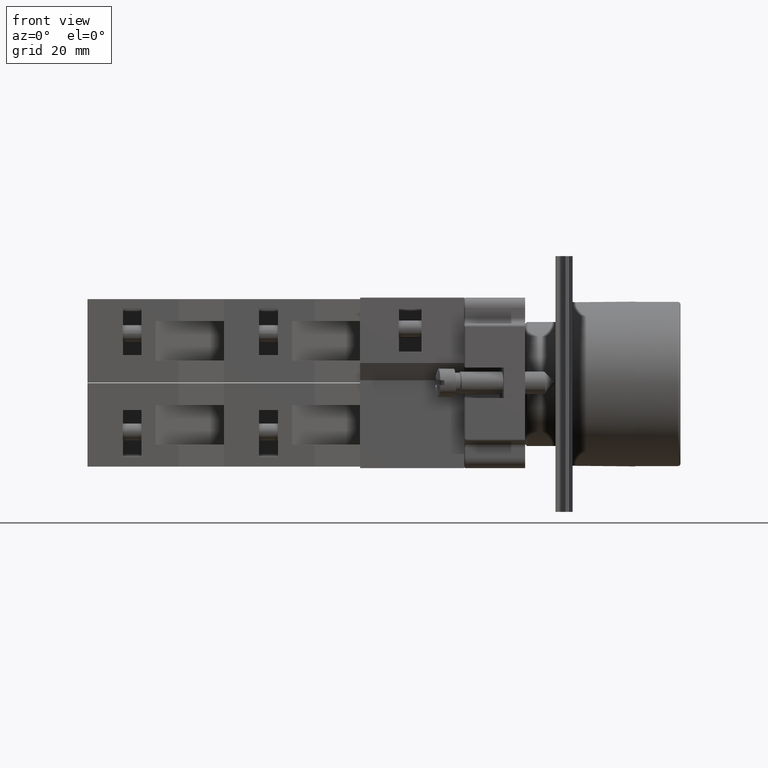
[diagram: clean part render]
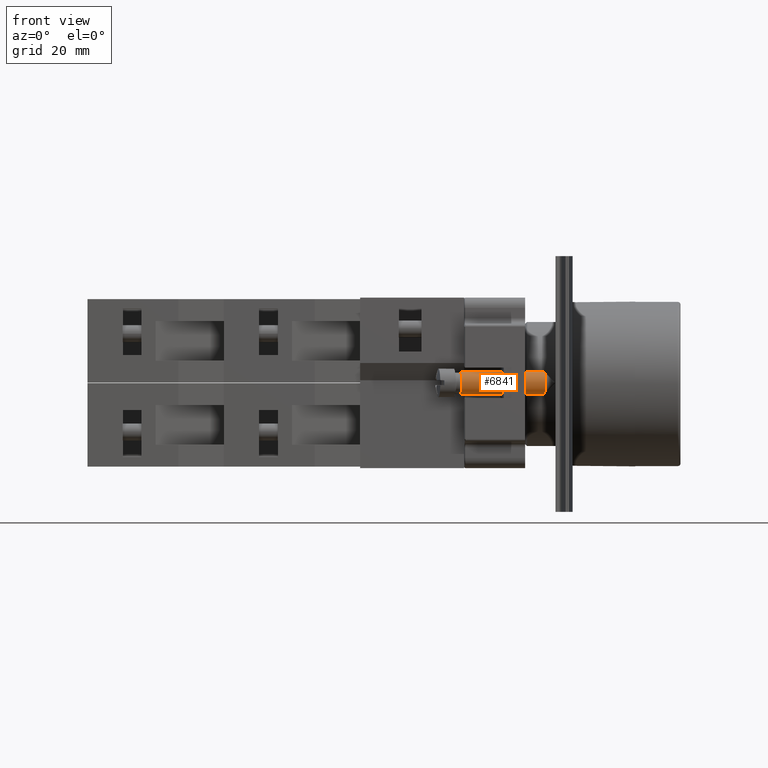
[diagram: same view with one face highlighted and labeled with its STEP entity id]
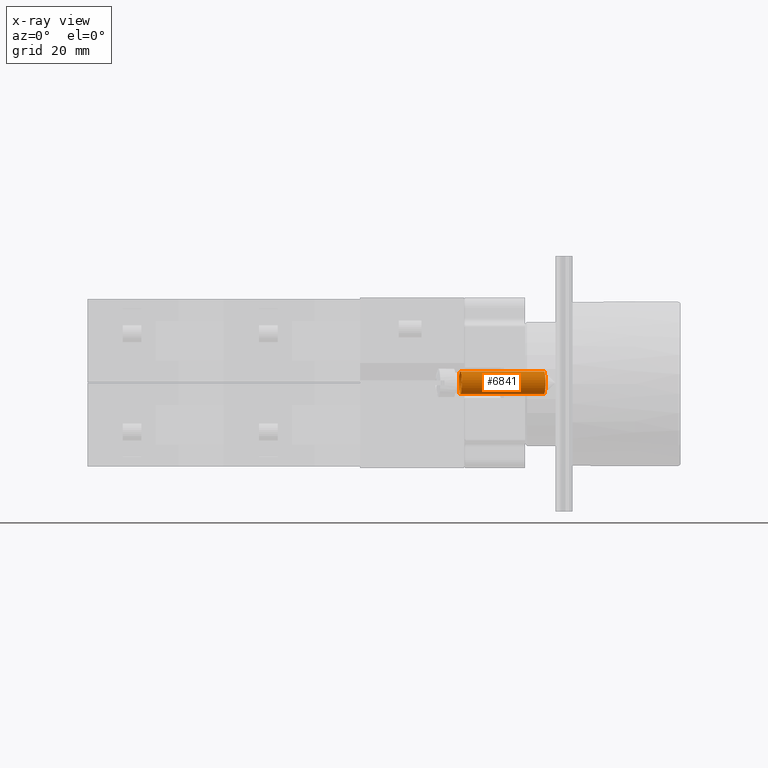
[diagram: x-ray of the same camera — body ghosted, the highlighted face saturated]
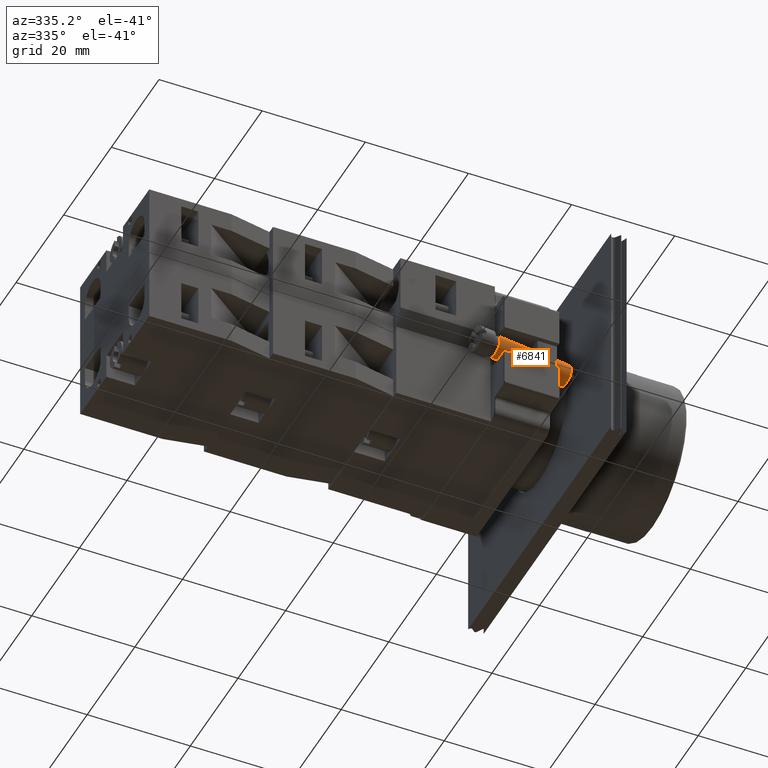
[diagram: same view with one face highlighted and labeled with its STEP entity id]
A machine part, front view. The second image highlights one B-rep face of the part: STEP entity #6841.
The next image is the same camera in x-ray: the body ghosted, the highlighted face saturated — about 0% of this face is hidden behind the body in this view.
A second angle (auxiliary view) of the same face is appended — the face is thin or edge-on in the first view.
In plain terms, the highlighted cylindrical surface (bore or boss wall) has radius 2 mm, axis along (0.9914, 0.1305, 0).
Its self-contained STEP definition (entity closure, byte-faithful):
#6810=CARTESIAN_POINT('',(-1.999999999999998,0.0,-1.119999999999999));
#6811=VERTEX_POINT('',#6810);
#6812=CARTESIAN_POINT('',(0.0,0.0,-1.119999999999999));
#6813=DIRECTION('',(0.0,0.0,-1.0));
#6814=DIRECTION('',(-1.0,0.0,0.0));
#6815=AXIS2_PLACEMENT_3D('',#6812,#6813,#6814);
#6816=CIRCLE('',#6815,1.999999999999998);
#6817=EDGE_CURVE('',#6811,#6811,#6816,.T.);
#6822=CARTESIAN_POINT('',(0.0,0.0,-8.559999999999999));
#6823=DIRECTION('',(0.0,0.0,-1.0));
#6824=DIRECTION('',(-1.0,0.0,0.0));
#6825=AXIS2_PLACEMENT_3D('',#6822,#6823,#6824);
#6826=CYLINDRICAL_SURFACE('',#6825,1.999999999999999);
#6827=CARTESIAN_POINT('',(-2.000000000000000,0.0,-15.999999999999998));
#6828=VERTEX_POINT('',#6827);
#6829=CARTESIAN_POINT('',(0.0,0.0,-15.999999999999998));
#6830=DIRECTION('',(0.0,0.0,-1.0));
#6831=DIRECTION('',(-1.0,0.0,0.0));
#6832=AXIS2_PLACEMENT_3D('',#6829,#6830,#6831);
#6833=CIRCLE('',#6832,2.000000000000000);
#6834=EDGE_CURVE('',#6828,#6828,#6833,.T.);
#6835=ORIENTED_EDGE('',*,*,#6834,.F.);
#6836=EDGE_LOOP('',(#6835));
#6837=FACE_OUTER_BOUND('',#6836,.T.);
#6838=ORIENTED_EDGE('',*,*,#6817,.T.);
#6839=EDGE_LOOP('',(#6838));
#6840=FACE_BOUND('',#6839,.T.);
#6841=ADVANCED_FACE('',(#6837,#6840),#6826,.T.);